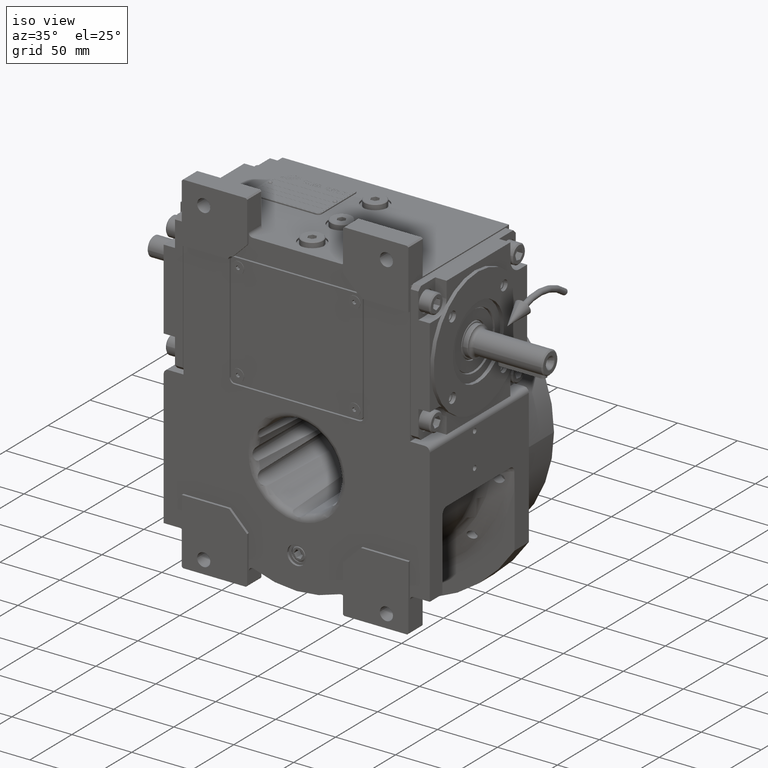
[diagram: clean part render]
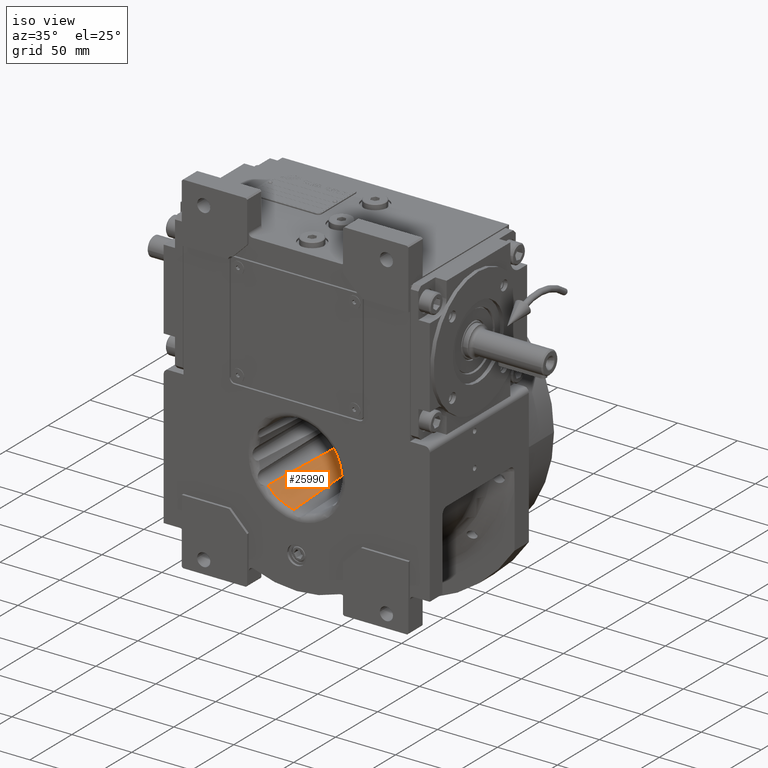
[diagram: same view with one face highlighted and labeled with its STEP entity id]
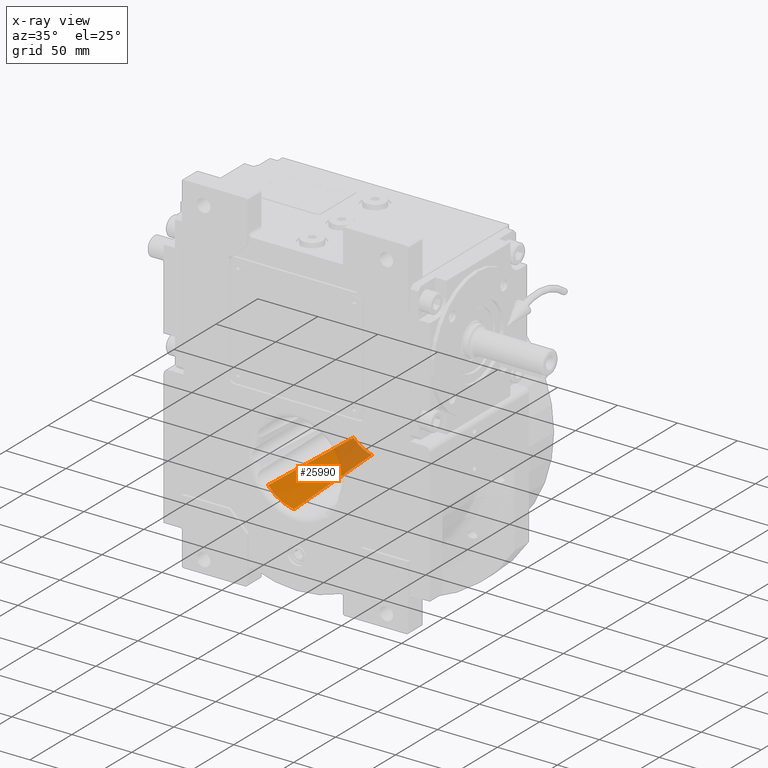
[diagram: x-ray of the same camera — body ghosted, the highlighted face saturated]
A machine part, iso view. The second image highlights one B-rep face of the part: STEP entity #25990.
The next image is the same camera in x-ray: the body ghosted, the highlighted face saturated — about 25% of this face is hidden behind the body in this view.
In plain terms, the highlighted conical surface has half-angle 2.224 deg.
Its self-contained STEP definition (entity closure, byte-faithful):
#181 = CARTESIAN_POINT ( 'NONE',  ( -22.86960190519749858, 46.61641710001740080, -21.82427154779680123 ) ) ;
#759 = CARTESIAN_POINT ( 'NONE',  ( -7.253242696960011671, 14.69085706488731802, -32.04362592525685471 ) ) ;
#1146 = CARTESIAN_POINT ( 'NONE',  ( -26.85994327092774370, -40.89856344987629200, -22.45906777047153824 ) ) ;
#2263 = CARTESIAN_POINT ( 'NONE',  ( -5.723853692384750502, -48.69402850002909844, -34.84639029672324995 ) ) ;
#3288 = DIRECTION ( 'NONE',  ( 0.000000000000000000, 0.000000000000000000, 1.000000000000000000 ) ) ;
#4014 = CARTESIAN_POINT ( 'NONE',  ( -7.407450296395254874, 30.57923326115427187, -31.37285089430780260 ) ) ;
#7101 = CARTESIAN_POINT ( 'NONE',  ( -25.22349478752745711, -9.117395885627805896, -22.46406618690551582 ) ) ;
#7523 = CONICAL_SURFACE ( 'NONE', #32245, 1.000000000000000000, 0.03881544608146950126 ) ;
#7801 = CARTESIAN_POINT ( 'NONE',  ( -25.51128382925622518, -15.03979164104011623, -22.48583985255021389 ) ) ;
#9384 = CARTESIAN_POINT ( 'NONE',  ( -7.465572626883200336, 46.61641710001750027, -30.71779199823645001 ) ) ;
#10593 = CARTESIAN_POINT ( 'NONE',  ( -7.465572626883200336, 46.61641710001750027, -30.71779199823645001 ) ) ;
#11305 = CARTESIAN_POINT ( 'NONE',  ( -6.983499318581207760, -1.271834121756846736, -32.73510189993323394 ) ) ;
#11643 = CARTESIAN_POINT ( 'NONE',  ( -6.985119507308261255, -1.176221860482277837, -32.73095945509626858 ) ) ;
#11892 = EDGE_CURVE ( 'NONE', #38866, #34341, #59443, .T. ) ;
#12463 = VERTEX_POINT ( 'NONE', #41025 ) ;
#13175 = CARTESIAN_POINT ( 'NONE',  ( -6.507895992926484574, -23.90877444692146270, -33.72873704689696694 ) ) ;
#13395 = CARTESIAN_POINT ( 'NONE',  ( -25.77231298794204761, -20.28739144558290874, -22.49722197610444141 ) ) ;
#14543 = CARTESIAN_POINT ( 'NONE',  ( -6.972093517984800926, -1.940545460718466453, -32.76408545176024489 ) ) ;
#14896 = CARTESIAN_POINT ( 'NONE',  ( -6.860290442586793880, -8.134360120738614697, -33.03346330631233485 ) ) ;
#16212 = CARTESIAN_POINT ( 'NONE',  ( -6.760513058433492262, -13.11549992965726652, -33.25152393889313629 ) ) ;
#16906 = CARTESIAN_POINT ( 'NONE',  ( -6.564052057620176406, -21.65130370057567433, -33.62851756936991166 ) ) ;
#18429 = CARTESIAN_POINT ( 'NONE',  ( -5.723853692384750502, -48.69402850002909844, -34.84639029672324995 ) ) ;
#20164 = CARTESIAN_POINT ( 'NONE',  ( -6.956713694644892421, -2.830628606097816302, -32.80269391485042263 ) ) ;
#21161 = EDGE_CURVE ( 'NONE', #34341, #38652, #55480, .T. ) ;
#23251 = CARTESIAN_POINT ( 'NONE',  ( -24.80791845430859155, -0.1879601721515594126, -22.40775267800577097 ) ) ;
#23609 = CARTESIAN_POINT ( 'NONE',  ( -24.82765555850797057, -0.6183679709979381656, -22.41083419928926901 ) ) ;
#25345 = EDGE_CURVE ( 'NONE', #38866, #12463, #36652, .T. ) ;
#25390 = DIRECTION ( 'NONE',  ( 0.000000000000000000, -1.000000000000000000, 1.836909530733564901E-16 ) ) ;
#25990 = ADVANCED_FACE ( 'NONE', ( #31009 ), #7523, .F. ) ;
#27455 = CARTESIAN_POINT ( 'NONE',  ( -6.986757225006564376, -1.079452833615444085, -32.72676720994347477 ) ) ;
#28174 = CARTESIAN_POINT ( 'NONE',  ( -24.53450783046137929, 5.844536185657777771, -22.36053744860168280 ) ) ;
#28510 = CARTESIAN_POINT ( 'NONE',  ( -24.83612322844836129, -0.8028076791545241120, -22.41214229727708585 ) ) ;
#29203 = CARTESIAN_POINT ( 'NONE',  ( -25.73542481560767925, -19.55262967312114597, -22.49607938580674116 ) ) ;
#29715 = CARTESIAN_POINT ( 'NONE',  ( -2.486899575160349704E-14, -48.69402850002909844, -1.776356839400250149E-14 ) ) ;
#30354 = ORIENTED_EDGE ( 'NONE', *, *, #63028, .T. ) ;
#30710 = CARTESIAN_POINT ( 'NONE',  ( -6.570175816264884006, -21.40025213424047124, -33.61738769823152495 ) ) ;
#31009 = FACE_OUTER_BOUND ( 'NONE', #57436, .T. ) ;
#31023 = AXIS2_PLACEMENT_3D ( 'NONE', #29715, #45226, #51179 ) ;
#32001 = ORIENTED_EDGE ( 'NONE', *, *, #21161, .T. ) ;
#32245 = AXIS2_PLACEMENT_3D ( 'NONE', #62647, #25390, #3288 ) ;
#33457 = CARTESIAN_POINT ( 'NONE',  ( -25.61991781860606920, -17.24455032291482226, -22.49199927322203152 ) ) ;
#33809 = CARTESIAN_POINT ( 'NONE',  ( -24.69007782272950280, 2.395844055718240995, -22.38844597932058278 ) ) ;
#34341 = VERTEX_POINT ( 'NONE', #9384 ) ;
#34480 = CARTESIAN_POINT ( 'NONE',  ( -23.16783615589157819, 38.59658208330429119, -21.96288101808353233 ) ) ;
#34554 = ORIENTED_EDGE ( 'NONE', *, *, #25345, .F. ) ;
#34620 = CARTESIAN_POINT ( 'NONE',  ( -6.536400482051990757, -22.78085453538672311, -33.67860664866778819 ) ) ;
#36334 = CARTESIAN_POINT ( 'NONE',  ( -6.986198756221731365, -1.112472536775718890, -32.72819764095981299 ) ) ;
#36652 = CIRCLE ( 'NONE', #31023, 35.31336033009873887 ) ;
#38015 = CARTESIAN_POINT ( 'NONE',  ( -6.573042581012001229, -21.28232574570029456, -33.61216087140498843 ) ) ;
#38652 = VERTEX_POINT ( 'NONE', #181 ) ;
#38736 = CARTESIAN_POINT ( 'NONE',  ( -23.48138045926136641, 30.61457055577221453, -22.08259406633575850 ) ) ;
#38866 = VERTEX_POINT ( 'NONE', #2263 ) ;
#39903 = CARTESIAN_POINT ( 'NONE',  ( -6.022077876998039869, -40.84851846487665483, -34.48864115347780057 ) ) ;
#41025 = CARTESIAN_POINT ( 'NONE',  ( -27.31593238095755183, -48.69402850002909844, -22.38019785351220392 ) ) ;
#43646 = CARTESIAN_POINT ( 'NONE',  ( -6.662437457719343037, -17.52649175088214406, -33.44591884644309943 ) ) ;
#44020 = CARTESIAN_POINT ( 'NONE',  ( -24.84177032210715907, -0.9257628674671612989, -22.41301157073969819 ) ) ;
#45054 = CARTESIAN_POINT ( 'NONE',  ( -25.76586295525374126, -20.15906628362315445, -22.49703246913887611 ) ) ;
#45226 = DIRECTION ( 'NONE',  ( 0.000000000000000000, 1.000000000000000000, 0.000000000000000000 ) ) ;
#47557 = CARTESIAN_POINT ( 'NONE',  ( -7.105427357600998703E-15, 46.61641710001730132, 0.000000000000000000 ) ) ;
#49321 = CARTESIAN_POINT ( 'NONE',  ( -25.88057552578210263, -22.43255883304559006, -22.49981477761766868 ) ) ;
#49645 = CARTESIAN_POINT ( 'NONE',  ( -27.31593238095755183, -48.69402850002909844, -22.38019785351220392 ) ) ;
#50674 = CARTESIAN_POINT ( 'NONE',  ( -25.75368476736253243, -19.91655888828228882, -22.49665975858389544 ) ) ;
#51179 = DIRECTION ( 'NONE',  ( -0.1620874830058605665, 0.000000000000000000, -0.9867763920224403851 ) ) ;
#53468 = CARTESIAN_POINT ( 'NONE',  ( -6.925363044724594630, -4.605542417194644855, -32.87978573518132208 ) ) ;
#54538 = CARTESIAN_POINT ( 'NONE',  ( -24.40343721502824437, 8.805876939486235955, -22.33347346584871573 ) ) ;
#54897 = CARTESIAN_POINT ( 'NONE',  ( -26.42420339653207861, -32.98277519606387642, -22.49775664289076360 ) ) ;
#55230 = CARTESIAN_POINT ( 'NONE',  ( -24.76852740281287524, 0.6730493447969587706, -22.40147263994368032 ) ) ;
#55480 = CIRCLE ( 'NONE', #63328, 31.61198380194111124 ) ;
#55925 = CARTESIAN_POINT ( 'NONE',  ( -24.14431659732404611, 14.73565035136440038, -22.27525475539560418 ) ) ;
#57008 = DIRECTION ( 'NONE',  ( -0.2361627373232039195, 5.487550186174294167E-15, -0.9717135182243846758 ) ) ;
#57436 = EDGE_LOOP ( 'NONE', ( #34554, #60285, #32001, #30354 ) ) ;
#57764 = CARTESIAN_POINT ( 'NONE',  ( -6.581826262602816335, -20.91999557359411810, -33.59610421288996918 ) ) ;
#59443 = B_SPLINE_CURVE_WITH_KNOTS ( 'NONE', 3,
 ( #18429, #39903, #61313, #13175, #34620, #16906, #30710, #38015, #57764, #59444, #43646, #16212, #14896, #53468, #20164, #14543, #63038, #11305, #11643, #36334, #27455, #759, #4014, #10593 ),
 .UNSPECIFIED., .F., .F.,
 ( 4, 2, 1, 2, 2, 1, 1, 1, 1, 1, 1, 1, 1, 1, 2, 2, 4 ),
 ( 0.000000000000000000, 0.2500000000000004996, 0.2812500000000004996, 0.2851562500000004996, 0.2890625000000004996, 0.2968750000000005551, 0.3125000000000006661, 0.3750000000000013323, 0.4375000000000018874, 0.4687500000000021649, 0.4843750000000022760, 0.4921875000000023870, 0.4960937500000023870, 0.4980468750000023870, 0.4990234375000023870, 0.5000000000000024425, 1.000000000000000000 ),
 .UNSPECIFIED. ) ;
#59444 = CARTESIAN_POINT ( 'NONE',  ( -6.599306107035019409, -20.19458487514449629, -33.56397017673172201 ) ) ;
#60161 = CARTESIAN_POINT ( 'NONE',  ( -25.80408192873362694, -20.91873774705515743, -22.49810808266439466 ) ) ;
#60285 = ORIENTED_EDGE ( 'NONE', *, *, #11892, .T. ) ;
#60517 = CARTESIAN_POINT ( 'NONE',  ( -22.86960190519749858, 46.61641710001740080, -21.82427154779680123 ) ) ;
#61189 = CARTESIAN_POINT ( 'NONE',  ( -23.97559824004786222, 18.69828849824494554, -22.23098874910949974 ) ) ;
#61313 = CARTESIAN_POINT ( 'NONE',  ( -6.273740631055740202, -32.92053606256847331, -34.13003539084533600 ) ) ;
#62647 = CARTESIAN_POINT ( 'NONE',  ( 0.000000000000000000, 834.8749999998768772, -1.415119829553997709E-13 ) ) ;
#63028 = EDGE_CURVE ( 'NONE', #38652, #12463, #64685, .T. ) ;
#63038 = CARTESIAN_POINT ( 'NONE',  ( -6.979709668917707610, -1.494847328070269876, -32.74476566864652227 ) ) ;
#63328 = AXIS2_PLACEMENT_3D ( 'NONE', #47557, #67556, #57008 ) ;
#64685 = B_SPLINE_CURVE_WITH_KNOTS ( 'NONE', 3,
 ( #60517, #34480, #38736, #61189, #55925, #54538, #28174, #33809, #55230, #23251, #23609, #28510, #44020, #66792, #65419, #7101, #7801, #33457, #29203, #50674, #45054, #13395, #60161, #49321, #66456, #54897, #1146, #49645 ),
 .UNSPECIFIED., .F., .F.,
 ( 4, 2, 2, 1, 1, 1, 1, 1, 2, 2, 2, 1, 1, 2, 2, 1, 2, 4 ),
 ( 0.000000000000000000, 0.2500000000000016098, 0.3750000000000024425, 0.4375000000000027756, 0.4687500000000029421, 0.4843750000000030531, 0.4921875000000031086, 0.4960937500000031641, 0.4980468750000031641, 0.5000000000000031086, 0.6250000000000034417, 0.6875000000000036637, 0.6953125000000035527, 0.6992187500000035527, 0.7031250000000034417, 0.7187500000000032196, 0.7500000000000027756, 1.000000000000000000 ),
 .UNSPECIFIED. ) ;
#65419 = CARTESIAN_POINT ( 'NONE',  ( -25.03417263692657357, -5.111746354802060743, -22.44241922409014123 ) ) ;
#66456 = CARTESIAN_POINT ( 'NONE',  ( -25.95781279270585884, -23.94214980640764168, -22.50025392737137153 ) ) ;
#66792 = CARTESIAN_POINT ( 'NONE',  ( -24.84450238247015363, -0.9852262047059946459, -22.41343067772830722 ) ) ;
#67556 = DIRECTION ( 'NONE',  ( 2.795308803354745262E-15, 1.000000000000000000, 4.872149525102769825E-15 ) ) ;